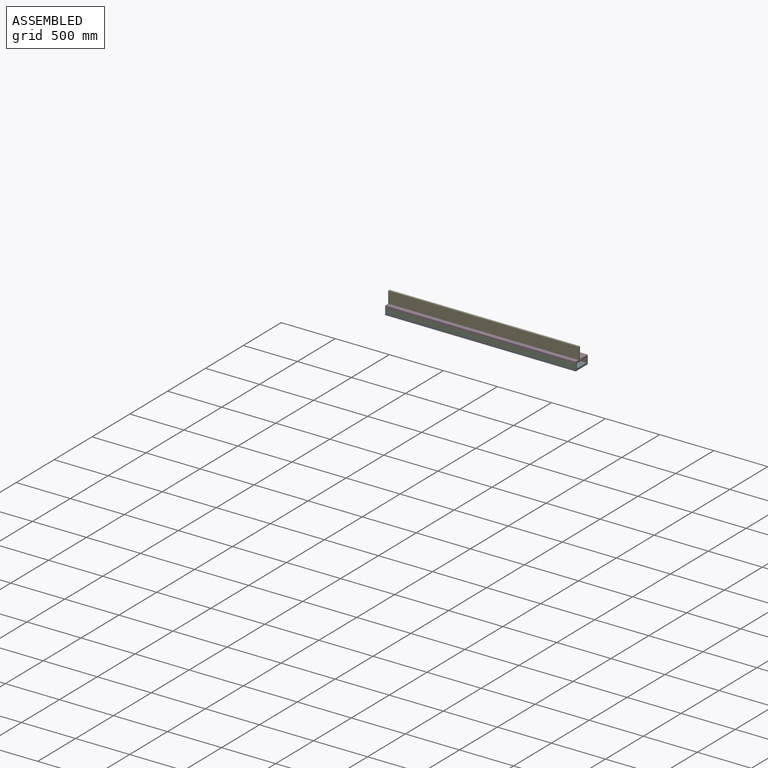
[diagram: assembled view]
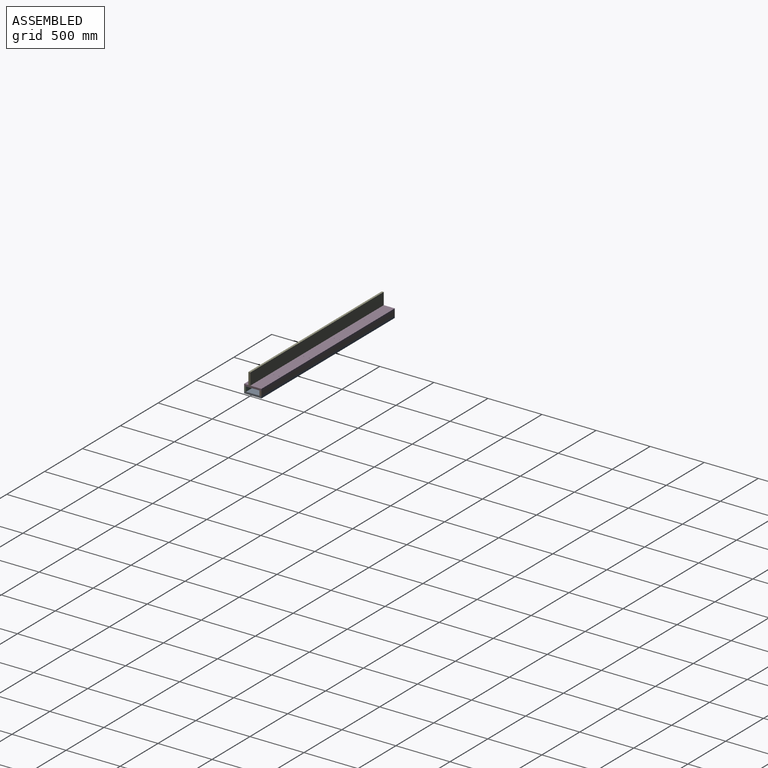
[diagram: assembled view, second angle]
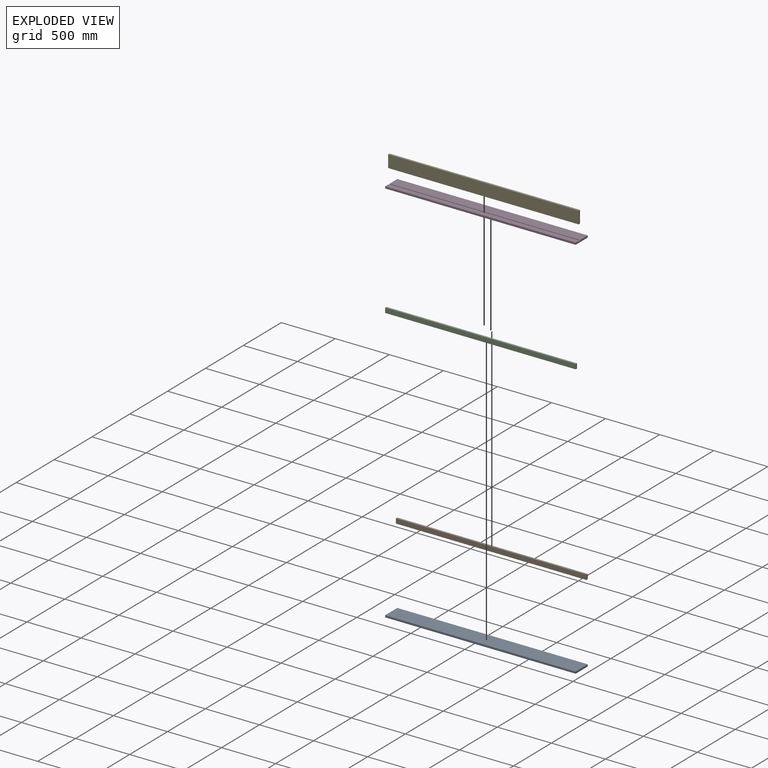
[diagram: exploded view]
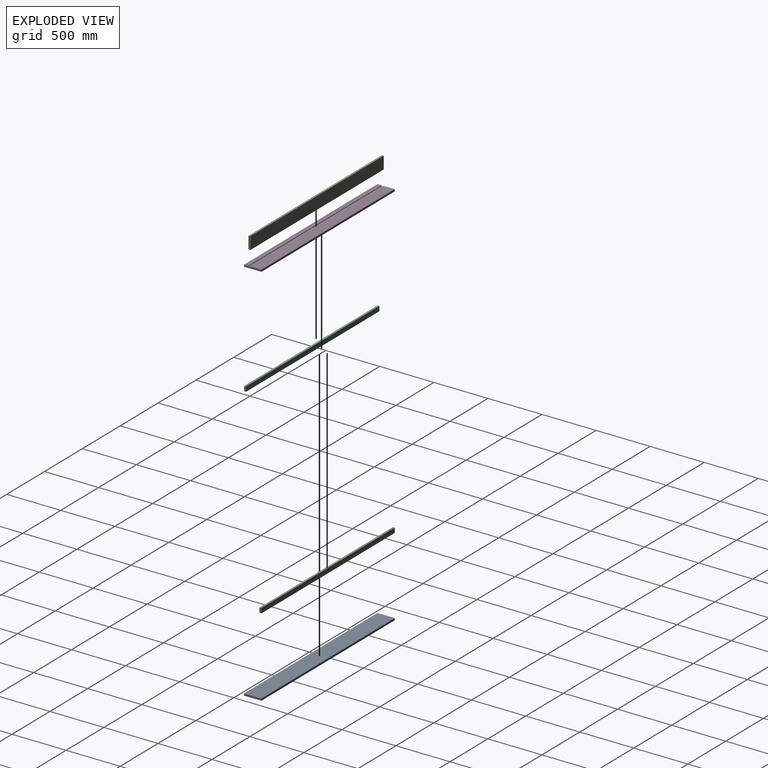
[diagram: exploded view, second angle]
ASSEMBLY  parts=5 mates=4
PART A: 6 faces, bbox 1762x160x18 mm
  f0: plane 1762x18mm, normal (0,1,0), area 31716mm2, adj f1,f3,f4,f5
  f1: plane 160x18mm, normal (-1,0,0), area 2880mm2, adj f0,f2,f4,f5
  f2: plane 1762x18mm, normal (0,-1,0), area 31716mm2, adj f1,f3,f4,f5
  f3: plane 160x18mm, normal (1,0,0), area 2880mm2, adj f0,f2,f4,f5
  f4: plane 1762x160mm, normal (0,0,1), area 281920mm2, adj f0,f1,f2,f3
  f5: plane 1762x160mm, normal (0,0,-1), area 281920mm2, adj f0,f1,f2,f3
PART B: 6 faces, bbox 1762x44x18 mm
  f0: plane 1762x18mm, normal (0,1,0), area 31716mm2, adj f1,f3,f4,f5
  f1: plane 44x18mm, normal (-1,0,0), area 792mm2, adj f0,f2,f4,f5
  f2: plane 1762x18mm, normal (0,-1,0), area 31716mm2, adj f1,f3,f4,f5
  f3: plane 44x18mm, normal (1,0,0), area 792mm2, adj f0,f2,f4,f5
  f4: plane 1762x44mm, normal (0,0,1), area 77528mm2, adj f0,f1,f2,f3
  f5: plane 1762x44mm, normal (0,0,-1), area 77528mm2, adj f0,f1,f2,f3
PART C: same geometry as B
PART D: 18 faces, bbox 1762x160x18 mm
  f0: plane 1762x40mm, normal (0,0,1), area 70480mm2, adj f1,f2,f4,f9
  f1: plane 160x18mm, normal (-1,0,0), area 2790mm2, adj f0,f3,f4,f5,f6,f7,f8,f9
  f2: plane 160x18mm, normal (1,0,0), area 2790mm2, adj f0,f3,f4,f5,f6,f7,f8,f9
  f3: plane 1762x18mm, normal (0,1,0), area 31716mm2, adj f1,f2,f5,f6
  f4: plane 1762x18mm, normal (0,-1,0), area 31716mm2, adj f0,f1,f2,f6
  f5: plane 1762x102mm, normal (0,0,1), area 179623.5mm2, adj f1,f2,f3,f7,f10,f11,f12,f13
  f6: plane 1762x160mm, normal (0,0,-1), area 281819.5mm2, adj f1,f2,f3,f4,f10,f11,f12,f13
  f7: plane 1762x5mm, normal (0,-1,0), area 8810mm2, adj f1,f2,f5,f8
  f8: plane 1762x18mm, normal (0,0,1), area 31716mm2, adj f1,f2,f7,f9
  f9: plane 1762x5mm, normal (0,1,0), area 8810mm2, adj f0,f1,f2,f8
  f10: cylinder r=2mm len=18mm, axis (0,0,1), area 226.2mm2, adj f5,f6
  f11: cylinder r=2mm len=18mm, axis (0,0,1), area 226.2mm2, adj f5,f6
  f12: cylinder r=2mm len=18mm, axis (0,0,1), area 226.2mm2, adj f5,f6
  f13: cylinder r=2mm len=18mm, axis (0,0,1), area 226.2mm2, adj f5,f6
  f14: cylinder r=2mm len=18mm, axis (0,0,1), area 226.2mm2, adj f5,f6
  f15: cylinder r=2mm len=18mm, axis (0,0,1), area 226.2mm2, adj f5,f6
  f16: cylinder r=2mm len=18mm, axis (0,0,1), area 226.2mm2, adj f5,f6
  f17: cylinder r=2mm len=18mm, axis (0,0,1), area 226.2mm2, adj f5,f6
PART E: 6 faces, bbox 1762x115x18 mm
  f0: plane 1762x18mm, normal (0,1,0), area 31716mm2, adj f1,f3,f4,f5
  f1: plane 115x18mm, normal (-1,0,0), area 2070mm2, adj f0,f2,f4,f5
  f2: plane 1762x18mm, normal (0,-1,0), area 31716mm2, adj f1,f3,f4,f5
  f3: plane 115x18mm, normal (1,0,0), area 2070mm2, adj f0,f2,f4,f5
  f4: plane 1762x115mm, normal (0,0,1), area 202630mm2, adj f0,f1,f2,f3
  f5: plane 1762x115mm, normal (0,0,-1), area 202630mm2, adj f0,f1,f2,f3
PLACE A rot(axis=(0,0,1),180deg) t=(1400.6,227.53,-323.93)mm
PLACE B rot(axis=(-1,0,0),90deg) t=(-172.53,218.14,-286.64)mm
PLACE C rot(axis=(0,-0.71,0.71),180deg) t=(1352.79,94.14,-286.64)mm
PLACE D t=(-220.35,-115.25,-261.93)mm
PLACE E rot(axis=(0,-0.71,0.71),180deg) t=(1081.56,134.14,-190.17)mm
MATE fastened B.f2 <-> D.f6  axis (0,0,1) through (1471.13,236.14,-261.93)mm
MATE fastened E.f1 <-> D.f2  axis (1,0,0) through (1471.13,116.14,-248.93)mm
MATE fastened A.f4 <-> B.f0  axis (0,0,1) through (1471.13,236.14,-305.93)mm
MATE fastened C.f4 <-> D.f4  axis (0,-1,0) through (1471.13,76.14,-261.93)mm
